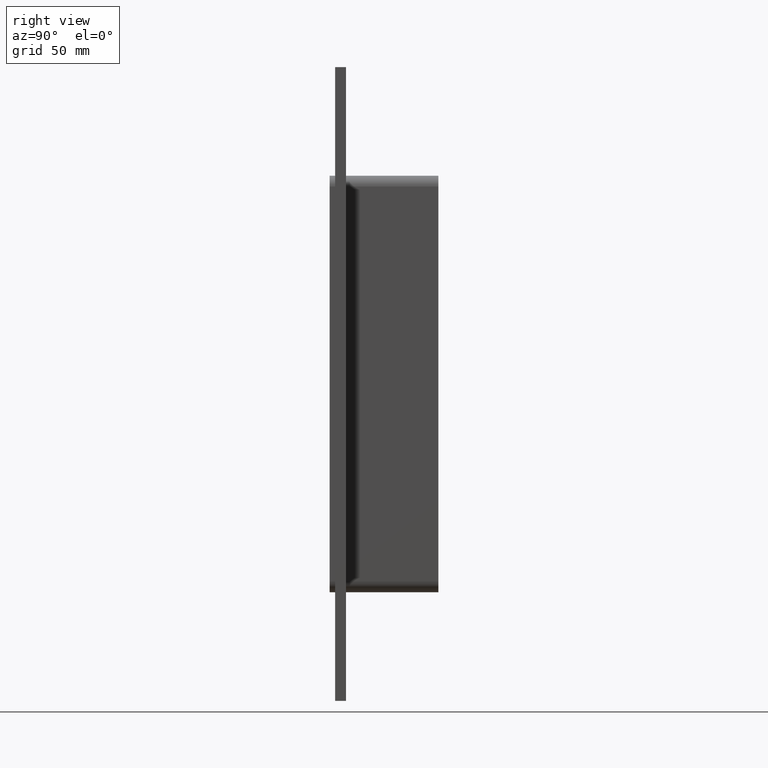
[diagram: clean part render]
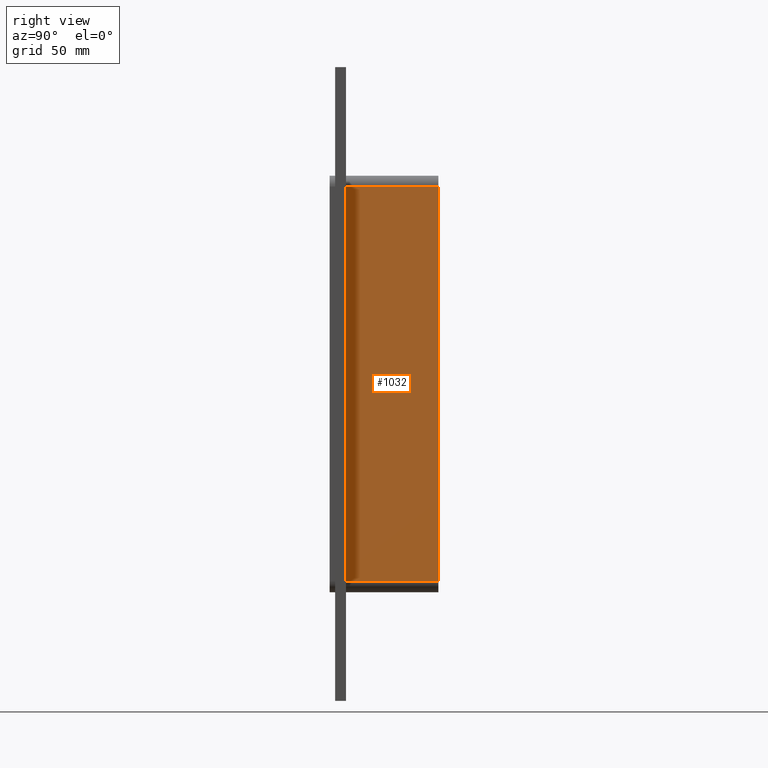
[diagram: same view with one face highlighted and labeled with its STEP entity id]
A machine part, right view. The second image highlights one B-rep face of the part: STEP entity #1032.
In plain terms, the highlighted planar face has unit normal (1, 0, 0).
Its self-contained STEP definition (entity closure, byte-faithful):
#329=CARTESIAN_POINT('',(36.25,6.000000000000001,-108.99999999999999));
#330=VERTEX_POINT('',#329);
#338=CARTESIAN_POINT('',(36.25,6.000000000000001,109.0));
#339=VERTEX_POINT('',#338);
#340=CARTESIAN_POINT('',(36.25,6.000000000000001,109.0));
#341=DIRECTION('',(0.0,0.0,-1.0));
#342=VECTOR('',#341,218.0);
#343=LINE('',#340,#342);
#344=EDGE_CURVE('',#339,#330,#343,.T.);
#646=CARTESIAN_POINT('',(36.25,57.0,-108.99999999999999));
#647=VERTEX_POINT('',#646);
#655=CARTESIAN_POINT('',(36.25,57.0,-108.99999999999999));
#656=DIRECTION('',(0.0,-1.0,0.0));
#657=VECTOR('',#656,51.0);
#658=LINE('',#655,#657);
#659=EDGE_CURVE('',#647,#330,#658,.T.);
#997=CARTESIAN_POINT('',(36.25,57.0,109.0));
#998=VERTEX_POINT('',#997);
#999=CARTESIAN_POINT('',(36.25,6.000000000000001,109.0));
#1000=DIRECTION('',(0.0,1.0,0.0));
#1001=VECTOR('',#1000,51.0);
#1002=LINE('',#999,#1001);
#1003=EDGE_CURVE('',#339,#998,#1002,.T.);
#1016=CARTESIAN_POINT('',(36.25,0.0,115.0));
#1017=DIRECTION('',(1.0,0.0,0.0));
#1018=DIRECTION('',(0.0,0.0,-1.0));
#1019=AXIS2_PLACEMENT_3D('',#1016,#1017,#1018);
#1020=PLANE('',#1019);
#1021=ORIENTED_EDGE('',*,*,#344,.T.);
#1022=ORIENTED_EDGE('',*,*,#659,.F.);
#1023=CARTESIAN_POINT('',(36.25,57.0,109.0));
#1024=DIRECTION('',(0.0,0.0,-1.0));
#1025=VECTOR('',#1024,218.0);
#1026=LINE('',#1023,#1025);
#1027=EDGE_CURVE('',#998,#647,#1026,.T.);
#1028=ORIENTED_EDGE('',*,*,#1027,.F.);
#1029=ORIENTED_EDGE('',*,*,#1003,.F.);
#1030=EDGE_LOOP('',(#1021,#1022,#1028,#1029));
#1031=FACE_OUTER_BOUND('',#1030,.T.);
#1032=ADVANCED_FACE('',(#1031),#1020,.T.);